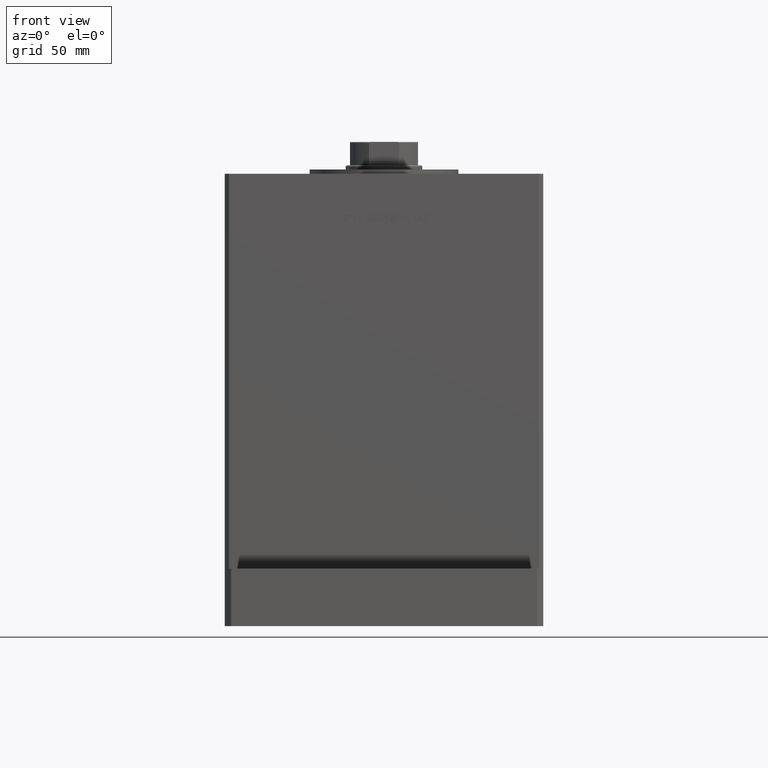
[diagram: clean part render]
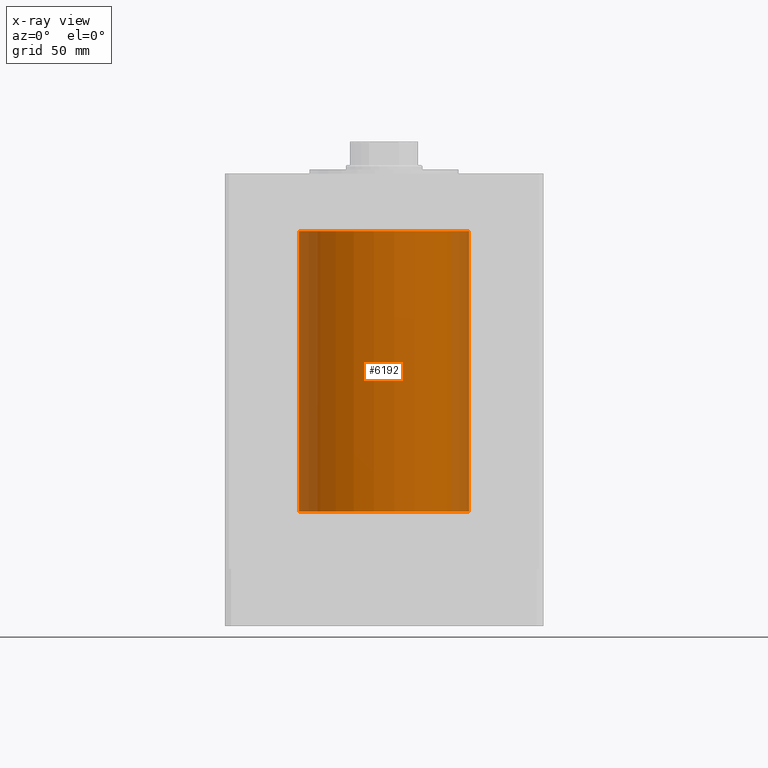
[diagram: x-ray — body ghosted, one internal face saturated and labeled with its STEP entity id]
A machine part, front view, then the same camera in x-ray: the body is ghosted and one INTERNAL B-rep face — a face not visible from any outside direction — is saturated and labeled: STEP entity #6192.
In plain terms, the highlighted cylindrical surface (partial cylindrical patch) has radius 40 mm, axis along (-0, -0, -1).
Its self-contained STEP definition (entity closure, byte-faithful):
#584 = AXIS2_PLACEMENT_3D ( 'NONE', #37756, #8720, #25260 ) ;
#3376 = LINE ( 'NONE', #28624, #12470 ) ;
#3710 = AXIS2_PLACEMENT_3D ( 'NONE', #28078, #11022, #47920 ) ;
#5208 = VERTEX_POINT ( 'NONE', #26483 ) ;
#6192 = ADVANCED_FACE ( 'NONE', ( #15098 ), #40320, .F. ) ;
#6463 = CIRCLE ( 'NONE', #48035, 40.00000000000000000 ) ;
#8017 = CARTESIAN_POINT ( 'NONE',  ( -40.00000000000000000, 0.000000000000000000, 132.0000000000000000 ) ) ;
#8720 = DIRECTION ( 'NONE',  ( -0.000000000000000000, 0.000000000000000000, 1.000000000000000000 ) ) ;
#8772 = CARTESIAN_POINT ( 'NONE',  ( -40.00000000000000000, 0.000000000000000000, 0.000000000000000000 ) ) ;
#11022 = DIRECTION ( 'NONE',  ( -0.000000000000000000, -0.000000000000000000, -1.000000000000000000 ) ) ;
#12470 = VECTOR ( 'NONE', #36501, 1000.000000000000000 ) ;
#12572 = ORIENTED_EDGE ( 'NONE', *, *, #41912, .F. ) ;
#14214 = VERTEX_POINT ( 'NONE', #46617 ) ;
#15098 = FACE_OUTER_BOUND ( 'NONE', #45345, .T. ) ;
#15519 = CARTESIAN_POINT ( 'NONE',  ( 0.000000000000000000, 0.000000000000000000, 132.0000000000000000 ) ) ;
#16694 = DIRECTION ( 'NONE',  ( -0.000000000000000000, -0.000000000000000000, -1.000000000000000000 ) ) ;
#17169 = ORIENTED_EDGE ( 'NONE', *, *, #46732, .T. ) ;
#24191 = CARTESIAN_POINT ( 'NONE',  ( 40.00000000000000000, 4.898587196589413026E-15, 132.0000000000000000 ) ) ;
#24288 = LINE ( 'NONE', #8017, #53170 ) ;
#25260 = DIRECTION ( 'NONE',  ( 1.000000000000000000, 0.000000000000000000, 0.000000000000000000 ) ) ;
#26483 = CARTESIAN_POINT ( 'NONE',  ( -40.00000000000000000, 0.000000000000000000, 132.0000000000000000 ) ) ;
#28078 = CARTESIAN_POINT ( 'NONE',  ( 0.000000000000000000, 0.000000000000000000, 132.0000000000000000 ) ) ;
#28624 = CARTESIAN_POINT ( 'NONE',  ( 40.00000000000000000, 4.898587196589413026E-15, 132.0000000000000000 ) ) ;
#28781 = DIRECTION ( 'NONE',  ( -0.000000000000000000, 0.000000000000000000, 1.000000000000000000 ) ) ;
#28872 = EDGE_CURVE ( 'NONE', #5208, #52899, #24288, .T. ) ;
#33543 = CIRCLE ( 'NONE', #584, 40.00000000000000000 ) ;
#34736 = EDGE_CURVE ( 'NONE', #5208, #36522, #6463, .T. ) ;
#36501 = DIRECTION ( 'NONE',  ( -0.000000000000000000, -0.000000000000000000, -1.000000000000000000 ) ) ;
#36522 = VERTEX_POINT ( 'NONE', #24191 ) ;
#37429 = ORIENTED_EDGE ( 'NONE', *, *, #28872, .F. ) ;
#37756 = CARTESIAN_POINT ( 'NONE',  ( 0.000000000000000000, 0.000000000000000000, 0.000000000000000000 ) ) ;
#40320 = CYLINDRICAL_SURFACE ( 'NONE', #3710, 40.00000000000000000 ) ;
#40483 = DIRECTION ( 'NONE',  ( 1.000000000000000000, 0.000000000000000000, 0.000000000000000000 ) ) ;
#41912 = EDGE_CURVE ( 'NONE', #52899, #14214, #33543, .T. ) ;
#45345 = EDGE_LOOP ( 'NONE', ( #47184, #17169, #12572, #37429 ) ) ;
#46617 = CARTESIAN_POINT ( 'NONE',  ( 40.00000000000000000, 4.898587196589413026E-15, 0.000000000000000000 ) ) ;
#46732 = EDGE_CURVE ( 'NONE', #36522, #14214, #3376, .T. ) ;
#47184 = ORIENTED_EDGE ( 'NONE', *, *, #34736, .T. ) ;
#47920 = DIRECTION ( 'NONE',  ( -1.000000000000000000, 0.000000000000000000, 0.000000000000000000 ) ) ;
#48035 = AXIS2_PLACEMENT_3D ( 'NONE', #15519, #28781, #40483 ) ;
#52899 = VERTEX_POINT ( 'NONE', #8772 ) ;
#53170 = VECTOR ( 'NONE', #16694, 1000.000000000000000 ) ;